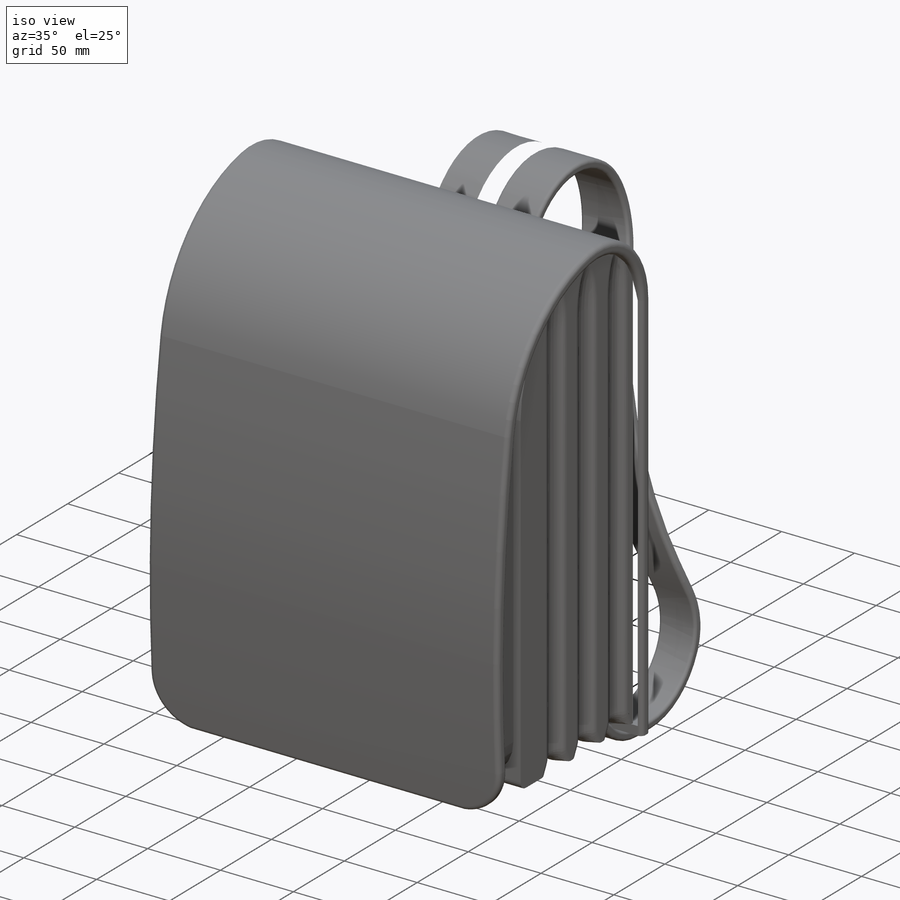
[diagram: iso view]
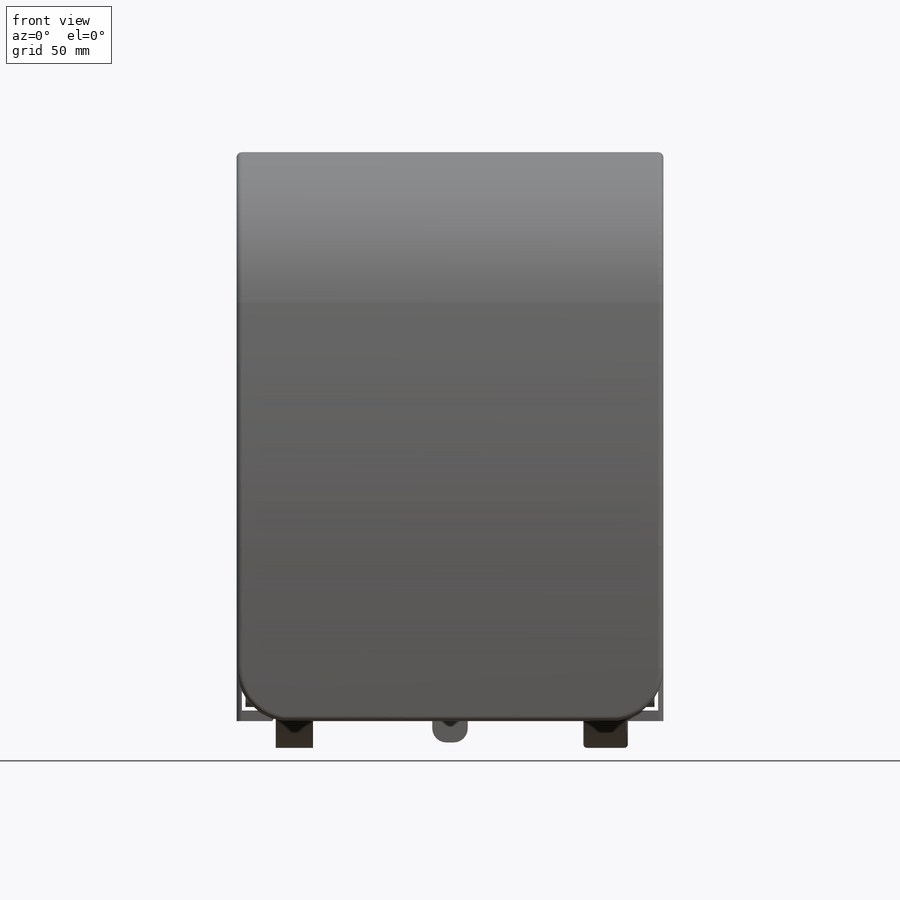
[diagram: front view]
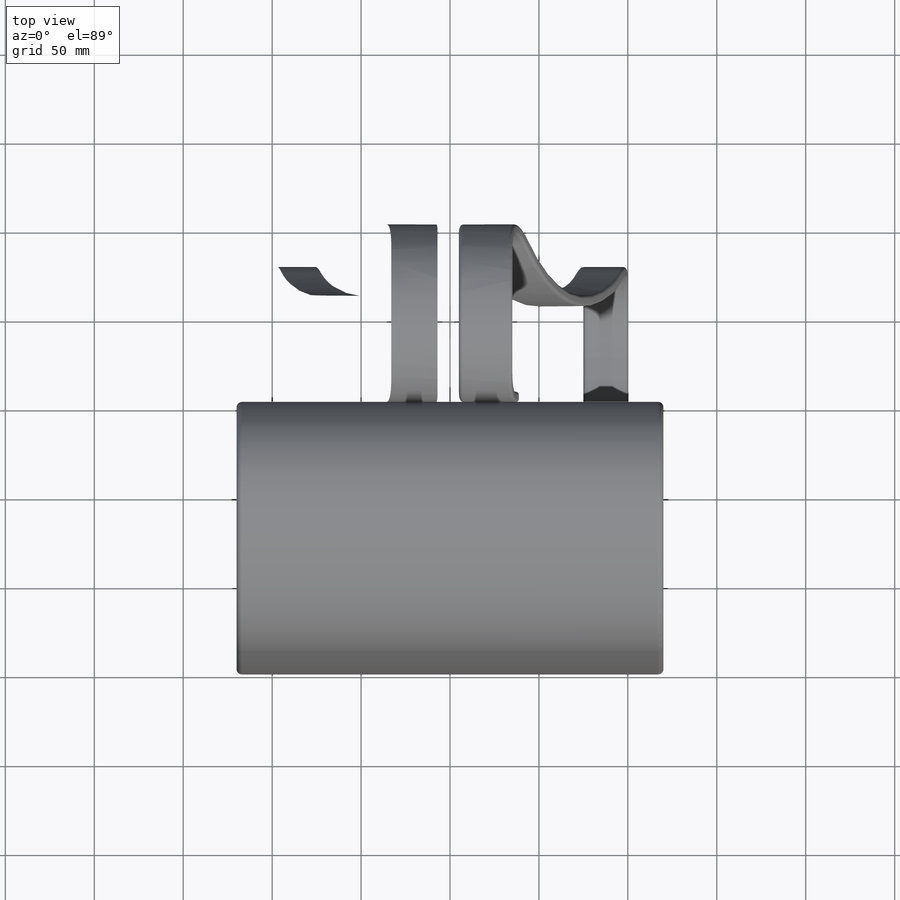
[diagram: top view]
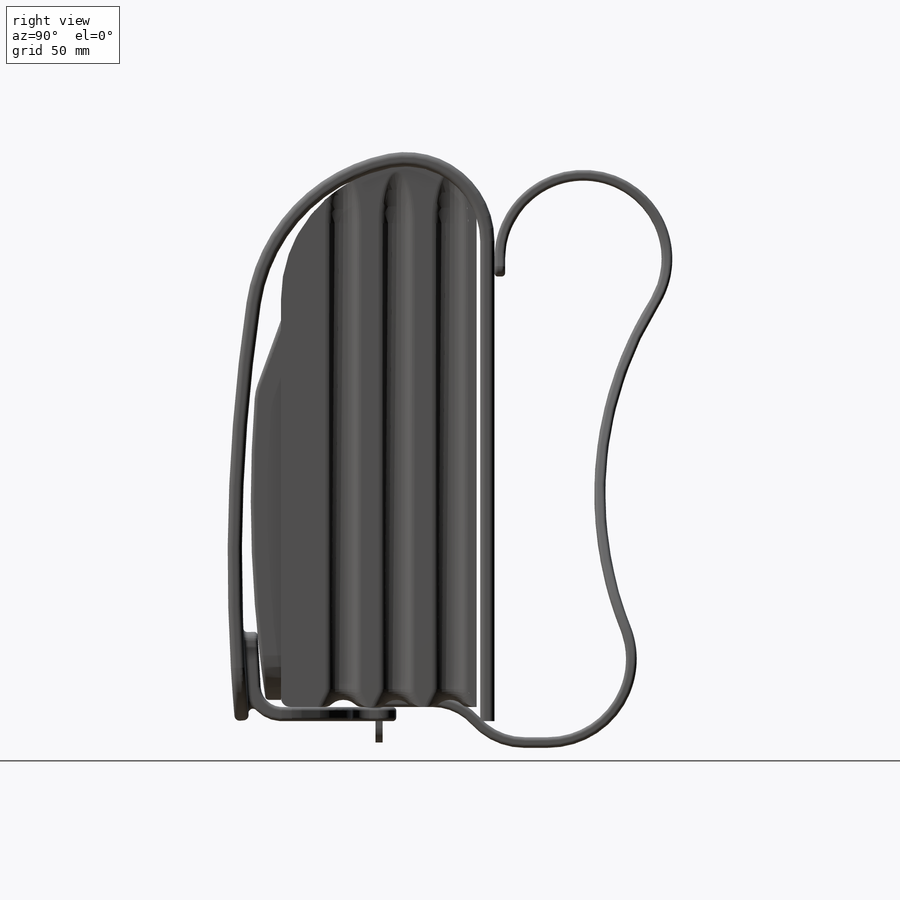
[diagram: right view]
SOLIDWORKS PART (.sldprt)
format: sldprt  version: not decoded by parser v0  size: 9,934,336 bytes
history: native  units: mm
features: sketch x14, fillet x12, plane x5, extrude x3, boolean_combine x3, cut_extrude x2, material x1, sweep x1, shell x1, mirror x1, move_body x1 + 2 further entries (+9 scaffold rows collapsed; 3 parser-record rows omitted)
feature tree (58):
  scaffold x9  (default folders/planes/origin — collapsed)
  material  "材料 <未指定>"
  "ｻｰﾌｪｽ ﾎﾞﾃﾞｨ"
  "ｿﾘｯﾄﾞ ﾎﾞﾃﾞｨ"
  plane  "正面"
  plane  "平面"
  plane  "右側面"
  plane  "平面Z50"  Offset=50mm
  plane  "平面2"  Offset=215mm
  sketch  "ｽｹｯﾁ1"  dims[D1=240.0mm D2=330.0mm D3=120.0mm]
  sketch  "ｽｹｯﾁ2"  dims[c1.D4=2000.0mm c1.D5=50.0mm c1.D6=~155.329637mm c1.D7=~77.664819mm c2.D6=200.0mm c2.D1=150.0mm c2.D3=150.0mm c2.D7=320.0mm c2.D2=10.0mm c3.D3=80.0mm]
  sketch  "ｽｹｯﾁ3"  dims[D1=1984.0mm D3=20.0mm D7=150.0mm D8=84.0mm D10=5.0mm D11=3.0mm D4=8.0mm D5=50.0mm D6=30.0mm D9=8.0mm D2=50.0mm]
  parser-record x3  (decoder bookkeeping rows leaked as tree rows — omitted from the tree; the rows remain in map.json)
  sketch  "ｽｹｯﾁ7"  dims[D1=30.0mm D19=50.0mm D5=30.0mm D6=1.0mm D7=5.0mm]
  fillet  "ﾌｨﾚｯﾄ4"  Radius=3mm
  fillet  "ﾌｨﾚｯﾄ6"  Radius=5mm
  sketch  "ｽｹｯﾁ4"  dims[c1.D3=15.0mm c1.D4=15.0mm c1.D5=20.0mm c1.D6=~9.776369mm c1.D7=20.0mm c2.D4=10.0mm c2.D5=30.0mm c2.D6=8.0mm c2.D1=25.0mm c2.D2=25.0mm c3.D6=~30.426981mm c3.D7=240.0mm c3.D8=120.0mm c3.D1=55.0mm c3.D2=50.0mm c3.D3=55.0mm c3.D4=25.0mm c3.D5=25.0mm c4.D1=30.0mm c4.D3=30.0mm c5.D1=25.0mm c5.D2=25.0mm c5.D3=40.0mm c5.D7=20.0mm c5.D8=4.0mm]
  cut_extrude  "ｶｯﾄ - 押し出し1"  [1 undecoded]
  extrude  "ﾎﾞｽ - 押し出し3"  [1 undecoded]
  sketch  "ｽｹｯﾁ4<4>"  dims[D1=12.0mm]
  fillet  "ﾌｨﾚｯﾄ15"  Radius=8mm
  fillet  "ﾌｨﾚｯﾄ5"  Radius=2mm
  boolean_combine  "組み合わせ1"
  fillet  "ﾌｨﾚｯﾄ7"  Radius=2.5mm
  extrude  "ﾎﾞｽ - 押し出し1"  [1 undecoded]
  sketch  "ｽｹｯﾁ3<3>"  dims[D1=230.0mm]
  sketch  "ｽｹｯﾁ10"  dims[c1.D2=180.0mm c1.D5=200.0mm c1.D6=200.0mm c1.D7=10.0mm c1.D1=280.0mm c2.D2=8.0mm c2.D3=115.0mm c2.D4=230.0mm c2.D8=280.0mm]
  sketch  "ｽｹｯﾁ12"  dims[c1.D2=20.0mm c1.D3=20.0mm c1.D6=20.0mm c1.D1=30.0mm c1.D4=5.0mm c1.D5=30.0mm c1.D7=3.0mm c2.D4=7.0mm c2.D7=35.0mm c3.D4=85.0mm c3.D7=374.0mm]
  sweep  "ｽｲｰﾌﾟ5"
  boolean_combine  "組み合わせ6"
  sketch  "ｽｹｯﾁ6"  dims[c1.D1=107.0mm c1.D2=18.0mm c1.D3=94.0mm c1.D4=214.0mm c2.D1=8.0mm]
  cut_extrude  "ｶｯﾄ - 押し出し2"  Depth=8mm
  fillet  "ﾌｨﾚｯﾄ13"  Radius=5mm
  sketch  "ｽｹｯﾁ5"  dims[c1.D1=1500.0mm c1.D2=120.0mm c1.D3=220.0mm c1.D4=~57.203897mm c2.D4=20.0deg c2.D5=6.5mm c2.D2=213.5mm c2.D3=17.0mm c3.D5=120.0mm c3.D6=112.0mm c3.D7=12.0mm c4.D5=120.0mm]
  extrude  "ﾎﾞｽ - 押し出し2"  Depth=220mm
  fillet  "ﾌｨﾚｯﾄ8"  Radius=25mm
  shell  "ｼｪﾙ2"  Thickness=3mm
  fillet  "ﾌｨﾚｯﾄ10"  Radius=30mm
  fillet  "ﾌｨﾚｯﾄ9"  Radius=2mm
  sketch  "ｽｹｯﾁ13"  dims[c1.D2=40.0mm c1.D3=30.0mm c1.D7=50.0mm c1.D10=400.0mm c1.D11=50.0mm c1.D1=70.0mm c1.D4=8.0mm c1.D5=100.0mm c1.D6=15.0mm c2.D1=70.0mm c2.D4=250.0mm c2.D8=35.0mm c2.D5=50.0mm c2.D9=30.0mm c2.D12=260.0mm c3.D1=100.0mm c3.D19=5.0mm c3.D5=6.0mm c3.D6=1.0mm c3.D7=5.0mm]
  sketch  "ｽｹｯﾁ14"  dims[c1.D9=200.0mm c1.D1=30.0mm c1.D2=25.0mm c1.D3=75.0mm c1.D4=75.0mm c1.D5=220.0mm c1.D6=95.0mm c1.D7=30.0mm c1.D8=200.0mm c1.D10=75.0mm c2.D5=100.0mm c2.D6=1.0mm c2.D7=5.0mm]
  fillet  "ﾌｨﾚｯﾄ18"  Radius=5mm
  fillet  "ﾌｨﾚｯﾄ16"  Radius=2mm
  mirror  "ﾐﾗｰ1"
  boolean_combine  "組み合わせ7"
  fillet  "ﾌｨﾚｯﾄ14"  Radius=2mm
  sketch  "ｽｹｯﾁ15"
  move_body  "ﾎﾞﾃﾞｨ-移動/ｺﾋﾟｰ1"
decode coverage: 28 of 38 modeling features carry decoded parameters; 2 rows unclassified (native names shown)
note: ~ marks probable driven/reference dimensions
note: 3 parameter values undecoded
summary: no parameter record found for 3 features
note: suppression state not decoded; provenance and decode notes live in map.json
